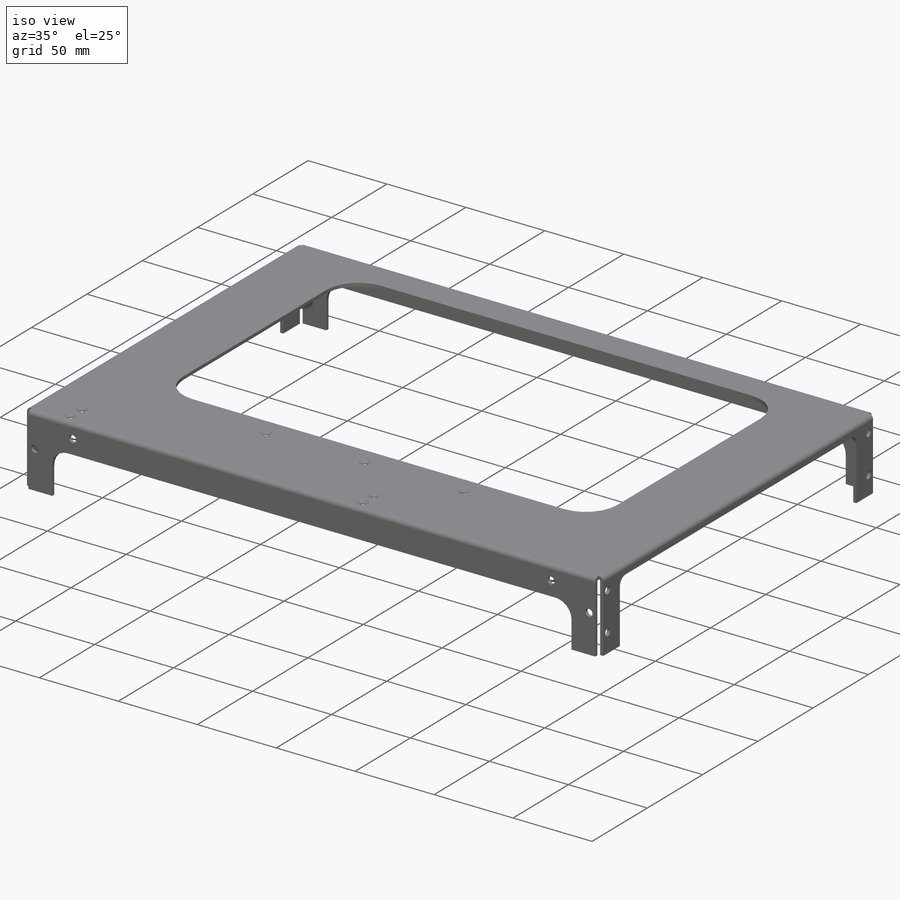
[diagram: iso view]
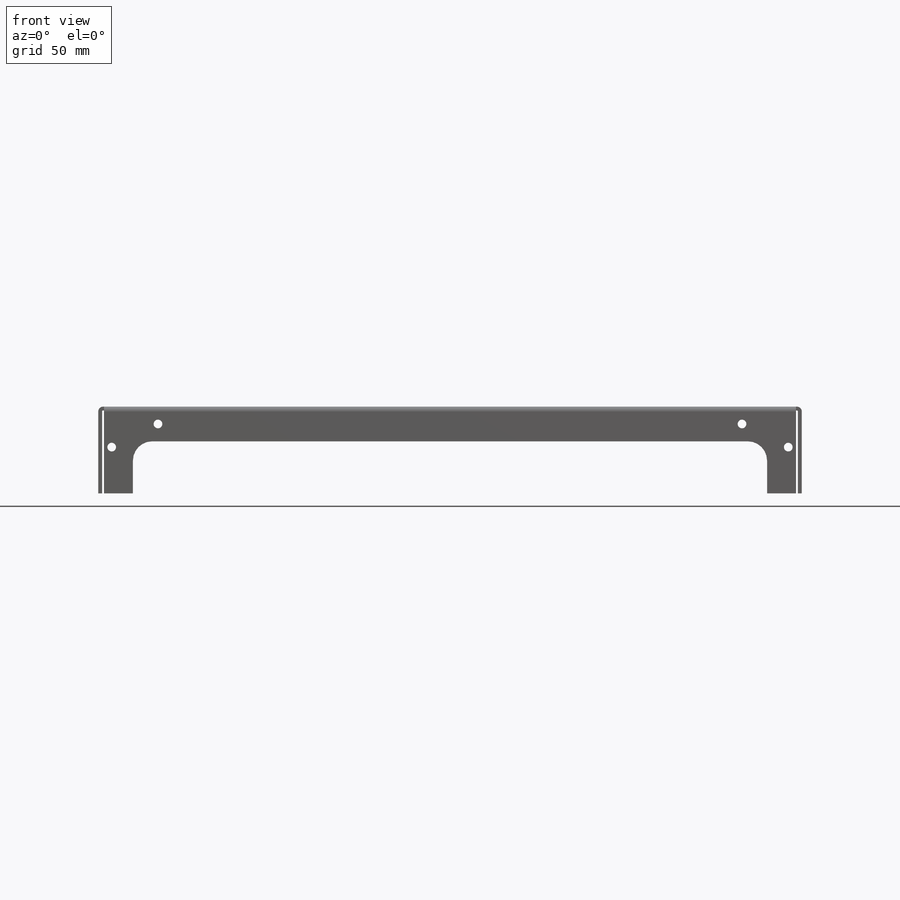
[diagram: front view]
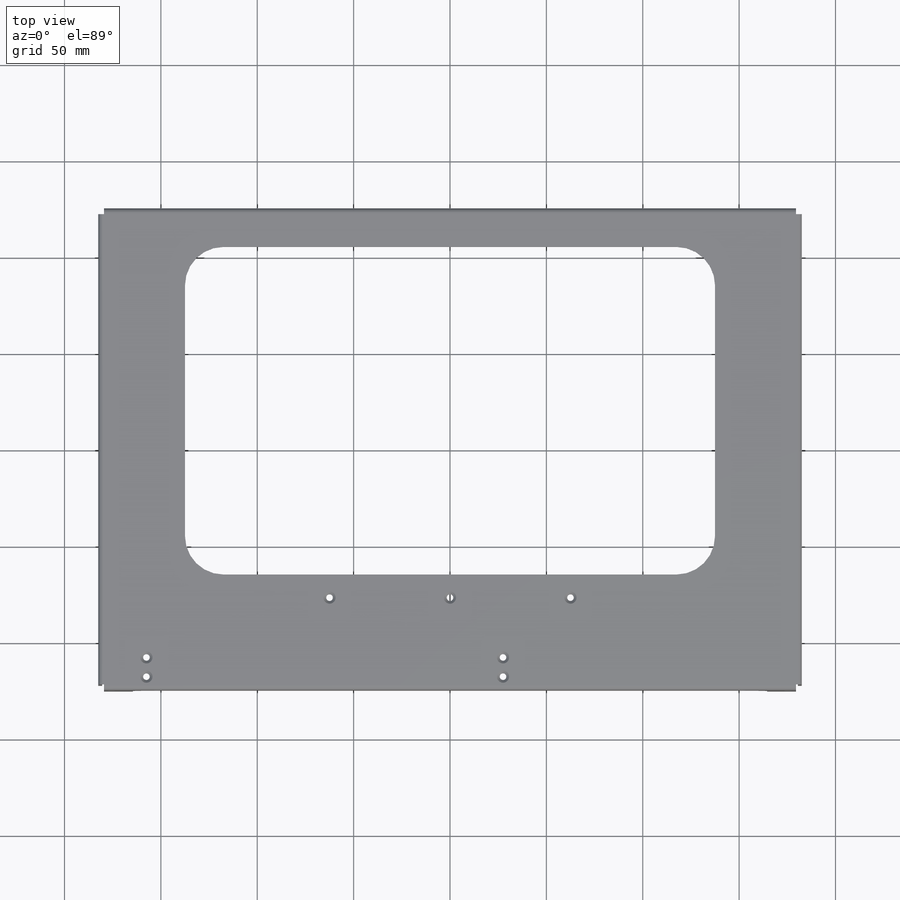
[diagram: top view]
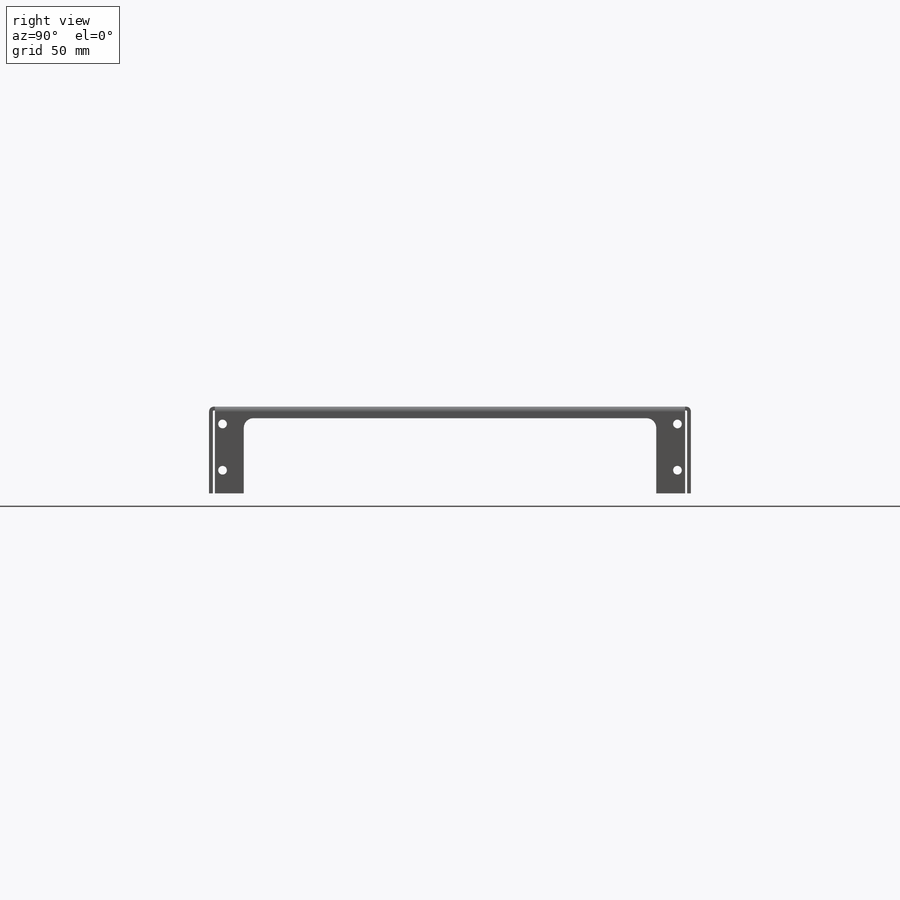
[diagram: right view]
SOLIDWORKS PART (.sldprt)
format: sldprt  version: not decoded by parser v0  size: 849,408 bytes
history: native  units: mm
features: sketch x12, cut_extrude x8, extrude x2, fillet x2, material x1, hole x1 (+11 scaffold rows collapsed)
feature tree (37):
  scaffold x11  (default folders/planes/origin — collapsed)
  material  "6061-T6 (SS)"
  sketch  "Sketch1"  dims[D1=2.5mm D2=250.0mm D3=2.0mm D4=45.0mm]
  extrude  "Boss-Extrude1"  Depth=365mm
  sketch  "Sketch2"  dims[D4=10.0mm D1=18.0mm D2=18.0mm D3=18.0mm]
  cut_extrude  "Cut-Extrude1"  [1 undecoded]
  sketch  "Sketch3"  dims[D1=20.0mm D2=45.0mm D3=45.0mm D4=20.0mm D5=60.0mm]
  cut_extrude  "Cut-Extrude2"  Depth=10mm
  sketch  "Sketch4"  dims[D1=2.0mm]
  extrude  "Boss-Extrude2"  [1 undecoded]
  sketch  "Sketch5"  dims[D1=3.0mm]
  cut_extrude  "Cut-Extrude3"  [1 undecoded]
  fillet  "Fillet1"  Radius=0.5mm
  fillet  "Fillet2"  Radius=2.5mm
  sketch  "Sketch8"  dims[D4=5.0mm D1=18.0mm D2=18.0mm D3=6.0mm]
  cut_extrude  "Cut-Extrude6"  [1 undecoded]
  sketch  "Sketch9"  dims[D1=4.5mm]
  cut_extrude  "Cut-Extrude7"  [1 undecoded]
  sketch  "Sketch10"  dims[D1=4.5mm]
  cut_extrude  "Cut-Extrude8"  Depth=10mm
  sketch  "Sketch11"  dims[D1=4.5mm]
  cut_extrude  "Cut-Extrude9"  Depth=10mm
  sketch  "Sketch12"  dims[D1=3.0mm]
  cut_extrude  "Cut-Extrude10"  Depth=10mm
  hole  "CSK for M3 Flat Head Machine Screw1"  Diameter=3.4mm Depth=45mm
  sketch  "Sketch14"
  sketch  "Sketch13"  dims[hole-wizard template sketch: 55 standard entries collapsed; hole parameters kept: c17.Thru Hole Depth=45.0mm c17.Near C'Sink Dia.=6.3mm c17.D4=~3.666174mm c17.Near C'Sink Angle=90.0deg]
decode coverage: 19 of 25 modeling features carry decoded parameters
note: ~ marks probable driven/reference dimensions
note: 5 parameter values undecoded
summary: no parameter record found for 5 features
note: suppression state not decoded; provenance and decode notes live in map.json
